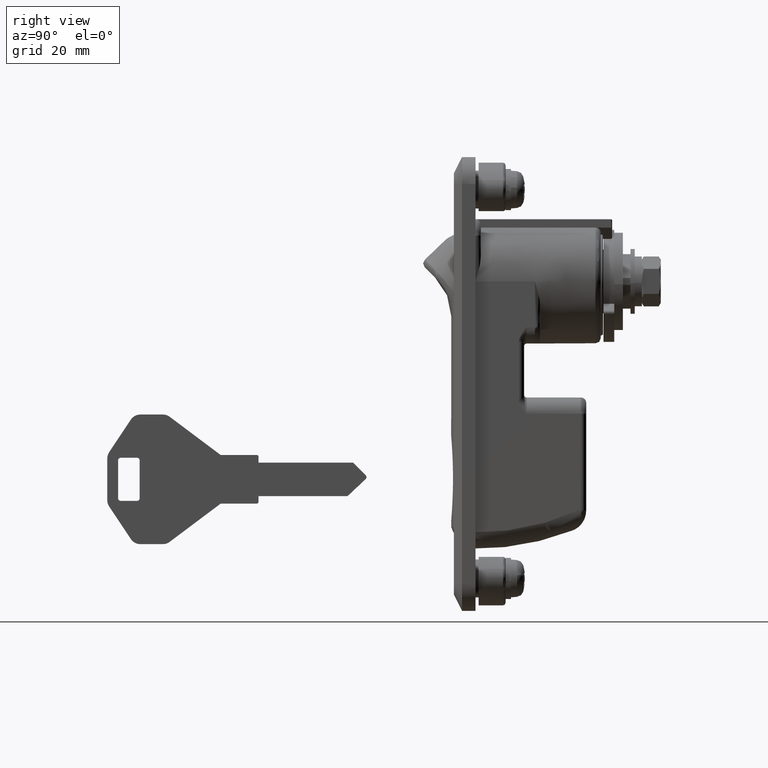
[diagram: clean part render]
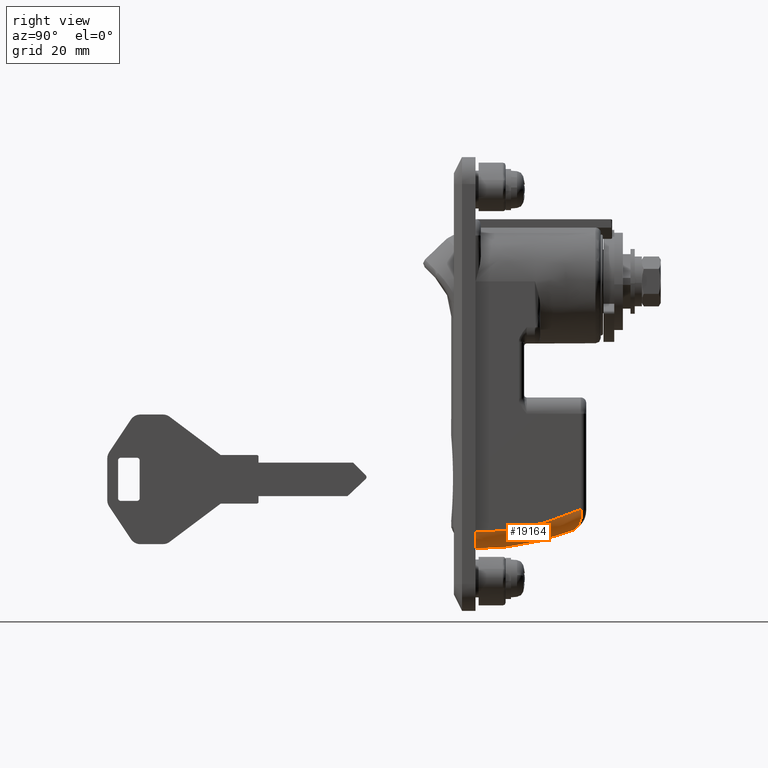
[diagram: same view with one face highlighted and labeled with its STEP entity id]
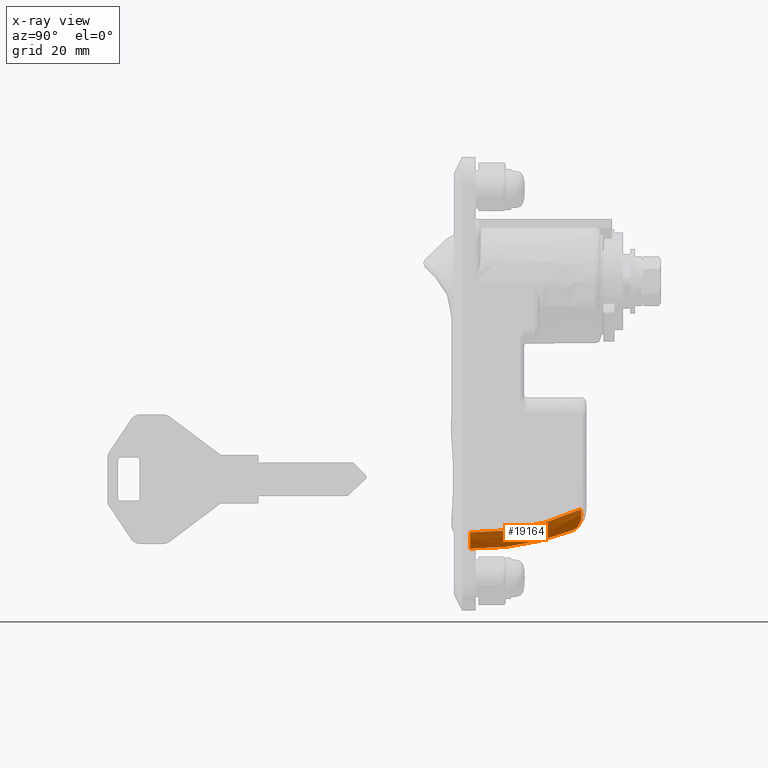
[diagram: x-ray of the same camera — body ghosted, the highlighted face saturated]
A machine part, right view. The second image highlights one B-rep face of the part: STEP entity #19164.
The next image is the same camera in x-ray: the body ghosted, the highlighted face saturated — about 0% of this face is hidden behind the body in this view.
In plain terms, the highlighted face is a freeform B-spline surface patch.
Its self-contained STEP definition (entity closure, byte-faithful):
#18312=CARTESIAN_POINT('',(18.950549450549651,-8.500000000000000,-46.130551421193502));
#18313=VERTEX_POINT('',#18312);
#18409=CARTESIAN_POINT('',(20.535874561105551,-11.488920870784440,-42.480839474703053));
#18410=VERTEX_POINT('',#18409);
#18424=CARTESIAN_POINT('',(20.535874561105551,-11.488920870784440,-42.480839474703053));
#18425=CARTESIAN_POINT('',(20.565725364921011,-11.470380853826841,-42.703898077207413));
#18426=CARTESIAN_POINT('',(20.581696037812559,-11.429469992023980,-42.923545226877181));
#18427=CARTESIAN_POINT('',(20.584121388931191,-11.353719028747699,-43.194498847000077));
#18428=CARTESIAN_POINT('',(20.583717324274922,-11.337290856842060,-43.248589846542203));
#18429=CARTESIAN_POINT('',(20.581157378948539,-11.302357466910630,-43.355323502126332));
#18430=CARTESIAN_POINT('',(20.579005560984029,-11.283820532498270,-43.408094576253532));
#18431=CARTESIAN_POINT('',(20.569998765727568,-11.225165164122251,-43.564704442212211));
#18432=CARTESIAN_POINT('',(20.560597444732149,-11.182010770428400,-43.666844425045042));
#18433=CARTESIAN_POINT('',(20.535209235250822,-11.088242122849010,-43.866910465875343));
#18434=CARTESIAN_POINT('',(20.519221625211340,-11.037625631688501,-43.964835411319797));
#18435=CARTESIAN_POINT('',(20.490341410731979,-10.956395040331520,-44.108699744383557));
#18436=CARTESIAN_POINT('',(20.479897085055551,-10.928432116113539,-44.156149736555861));
#18437=CARTESIAN_POINT('',(20.457366963690991,-10.870763428343309,-44.250052812099689));
#18438=CARTESIAN_POINT('',(20.445296282833500,-10.841103324415430,-44.296421019851763));
#18439=CARTESIAN_POINT('',(20.381529068338310,-10.690112557672240,-44.523506109910599));
#18440=CARTESIAN_POINT('',(20.319244556058901,-10.559689730254640,-44.691931399553233));
#18441=CARTESIAN_POINT('',(20.174010053329859,-10.282569534429721,-45.005686191794268));
#18442=CARTESIAN_POINT('',(20.091043972469748,-10.135842372045250,-45.150983033550247));
#18443=CARTESIAN_POINT('',(19.904501186752501,-9.827120096981780,-45.419368101523837));
#18444=CARTESIAN_POINT('',(19.802932697467359,-9.668452282731801,-45.539551351885223));
#18445=CARTESIAN_POINT('',(19.639037715735590,-9.425172275804288,-45.700272904537393));
#18446=CARTESIAN_POINT('',(19.582458771526031,-9.343170188382366,-45.750586548383467));
#18447=CARTESIAN_POINT('',(19.465402181731740,-9.177408150146471,-45.844777317525022));
#18448=CARTESIAN_POINT('',(19.404799376811471,-9.093481041812069,-45.888729211555102));
#18449=CARTESIAN_POINT('',(19.280394010533531,-8.924931698999975,-45.969672063803543));
#18450=CARTESIAN_POINT('',(19.216582776702410,-8.840288101356963,-46.006692466854112));
#18451=CARTESIAN_POINT('',(19.118456777115998,-8.712821160357937,-46.057081107106370));
#18452=CARTESIAN_POINT('',(19.085380101683850,-8.670292569882612,-46.073001931980649));
#18453=CARTESIAN_POINT('',(19.018487862859089,-8.585160603537206,-46.103098711689292));
#18454=CARTESIAN_POINT('',(18.984584036766432,-8.542447678804736,-46.117307713843580));
#18455=CARTESIAN_POINT('',(18.950549450549651,-8.500000000000000,-46.130551421193502));
#18456=B_SPLINE_CURVE_WITH_KNOTS('',3,(#18424,#18425,#18426,#18427,#18428,#18429,#18430,#18431,#18432,#18433,#18434,#18435,#18436,#18437,#18438,#18439,#18440,#18441,#18442,#18443,#18444,#18445,#18446,#18447,#18448,#18449,#18450,#18451,#18452,#18453,#18454,#18455),.UNSPECIFIED.,.F.,.U.,(4,2,2,2,2,2,2,2,2,2,2,2,2,2,2,4),(0.0,0.124999999999996,0.156249999999994,0.187499999999992,0.249999999999988,0.312499999999984,0.343749999999984,0.374999999999983,0.499999999999986,0.624999999999989,0.749999999999992,0.812499999999994,0.874999999999996,0.937499999999997,0.968749999999999,1.0),.UNSPECIFIED.);
#18457=EDGE_CURVE('',#18410,#18313,#18456,.T.);
#18483=CARTESIAN_POINT('',(20.500000000000000,-11.500000000000000,-42.213741838410847));
#18484=VERTEX_POINT('',#18483);
#18500=CARTESIAN_POINT('',(20.500000000000000,-11.500000000000000,-42.213741838410847));
#18501=CARTESIAN_POINT('',(20.512021266390619,-11.500000000000000,-42.302919097803631));
#18502=CARTESIAN_POINT('',(20.523979168808861,-11.496308972500611,-42.391951765067319));
#18503=CARTESIAN_POINT('',(20.535874561105551,-11.488920870784440,-42.480839474703053));
#18504=QUASI_UNIFORM_CURVE('',3,(#18500,#18501,#18502,#18503),.UNSPECIFIED.,.F.,.U.);
#18505=EDGE_CURVE('',#18484,#18410,#18504,.T.);
#19079=CARTESIAN_POINT('',(-1.175368157488439,-8.291388679378102,-49.444907702535083));
#19080=CARTESIAN_POINT('',(11.428178483475097,-8.291388679378100,-49.999410791086099));
#19081=CARTESIAN_POINT('',(22.759272329282826,-8.291388679378100,-44.452954817795217));
#19082=CARTESIAN_POINT('',(-1.185911378606293,-11.732612088108512,-49.684549251605873));
#19083=CARTESIAN_POINT('',(11.478720085469805,-11.732612088108514,-50.241739815678201));
#19084=CARTESIAN_POINT('',(22.864731636821897,-11.732612088108512,-44.668402180290030));
#19085=CARTESIAN_POINT('',(-1.034658325875136,-11.492738056579460,-46.246651530121952));
#19086=CARTESIAN_POINT('',(10.753650250912751,-11.492738056579459,-46.765287569709109));
#19087=CARTESIAN_POINT('',(21.351812385115959,-11.492738056579457,-41.577594265332785));
#19095=(BOUNDED_SURFACE()B_SPLINE_SURFACE(2,2,((#19079,#19082,#19085),(#19080,#19083,#19086),(#19081,#19084,#19087)),.UNSPECIFIED.,.F.,.F.,.U.)B_SPLINE_SURFACE_WITH_KNOTS((3,3),(3,3),(0.0,24.834424488644771),(0.0,5.467122419565879),.UNSPECIFIED.)GEOMETRIC_REPRESENTATION_ITEM()RATIONAL_B_SPLINE_SURFACE(((0.872173934714462,0.572342279542682,0.872174011602236),(0.844966407871365,0.554488022135649,0.844966482360619),(0.871796176333700,0.572094385075586,0.871796253188172)))REPRESENTATION_ITEM('')SURFACE());
#19096=CARTESIAN_POINT('',(-7.327472E-015,-8.500000000000000,-49.489897959078512));
#19097=VERTEX_POINT('',#19096);
#19098=CARTESIAN_POINT('',(18.950549450549651,-8.500000000000000,-46.130551421193509));
#19099=CARTESIAN_POINT('',(9.808160959863344,-8.500000000000000,-49.688083070875940));
#19100=CARTESIAN_POINT('',(1.496199E-014,-8.500000000000000,-49.489897959078483));
#19108=(BOUNDED_CURVE()B_SPLINE_CURVE(2,(#19098,#19099,#19100),.UNSPECIFIED.,.F.,.U.)CURVE()GEOMETRIC_REPRESENTATION_ITEM()QUASI_UNIFORM_CURVE()RATIONAL_B_SPLINE_CURVE((1.0,0.980921539815921,1.0))REPRESENTATION_ITEM(''));
#19109=EDGE_CURVE('',#18313,#19097,#19108,.T.);
#19110=ORIENTED_EDGE('',*,*,#19109,.F.);
#19111=ORIENTED_EDGE('',*,*,#18457,.F.);
#19112=ORIENTED_EDGE('',*,*,#18505,.F.);
#19113=CARTESIAN_POINT('',(0.0,-11.500000000000000,-46.489246068311303));
#19114=VERTEX_POINT('',#19113);
#19115=CARTESIAN_POINT('',(-7.155734E-015,-11.500000000000000,-46.489246068311317));
#19116=CARTESIAN_POINT('',(10.744052335672883,-11.499999999999996,-46.720354405062743));
#19117=CARTESIAN_POINT('',(20.500000000000021,-11.500000000000000,-42.213741838410947));
#19125=(BOUNDED_CURVE()B_SPLINE_CURVE(2,(#19115,#19116,#19117),.UNSPECIFIED.,.F.,.U.)CURVE()GEOMETRIC_REPRESENTATION_ITEM()QUASI_UNIFORM_CURVE()RATIONAL_B_SPLINE_CURVE((1.0,0.974318754776570,1.0))REPRESENTATION_ITEM(''));
#19126=EDGE_CURVE('',#19114,#18484,#19125,.T.);
#19127=ORIENTED_EDGE('',*,*,#19126,.F.);
#19128=CARTESIAN_POINT('',(-7.327472E-015,-8.500000000000000,-49.489897959078512));
#19129=CARTESIAN_POINT('',(-7.327472E-015,-8.698103322389844,-49.489897959078512));
#19130=CARTESIAN_POINT('',(7.204405E-031,-8.892896891382499,-49.470464223345637));
#19131=CARTESIAN_POINT('',(0.0,-9.180325795504636,-49.413356023636879));
#19132=CARTESIAN_POINT('',(0.0,-9.275335958924444,-49.389625736119669));
#19133=CARTESIAN_POINT('',(0.0,-9.463720951000243,-49.332563036751182));
#19134=CARTESIAN_POINT('',(0.0,-9.557353599196350,-49.299068871915452));
#19135=CARTESIAN_POINT('',(0.0,-9.829725442996553,-49.186214701680832));
#19136=CARTESIAN_POINT('',(0.0,-10.001972119500820,-49.094134890425622));
#19137=CARTESIAN_POINT('',(0.0,-10.205718896117460,-48.958172897548728));
#19138=CARTESIAN_POINT('',(0.0,-10.245884972545699,-48.929928003611032));
#19139=CARTESIAN_POINT('',(0.0,-10.325031998851429,-48.871299718682252));
#19140=CARTESIAN_POINT('',(0.0,-10.364112700447260,-48.840832943835331));
#19141=CARTESIAN_POINT('',(0.0,-10.478758899893210,-48.746795946410337));
#19142=CARTESIAN_POINT('',(0.0,-10.551504898647870,-48.680824071836170));
#19143=CARTESIAN_POINT('',(0.0,-10.759034846699000,-48.473375175262419));
#19144=CARTESIAN_POINT('',(0.0,-10.883211940670121,-48.322454971470933));
#19145=CARTESIAN_POINT('',(0.0,-11.020295832165610,-48.117657095446759));
#19146=CARTESIAN_POINT('',(0.0,-11.046865896547050,-48.075763451785491));
#19147=CARTESIAN_POINT('',(0.0,-11.097680526473390,-47.991079613937927));
#19148=CARTESIAN_POINT('',(0.0,-11.121948433691630,-47.948269167763222));
#19149=CARTESIAN_POINT('',(0.0,-11.191397228103391,-47.818458274952953));
#19150=CARTESIAN_POINT('',(0.0,-11.275065019801090,-47.641704799631057));
#19151=CARTESIAN_POINT('',(0.0,-11.341144418183710,-47.457718933968863));
#19152=CARTESIAN_POINT('',(0.0,-11.384019816906489,-47.316980995870992));
#19153=CARTESIAN_POINT('',(0.0,-11.397195620824309,-47.269609449695473));
#19154=CARTESIAN_POINT('',(0.0,-11.421275574369620,-47.173932247545352));
#19155=CARTESIAN_POINT('',(0.0,-11.432193215952481,-47.125538149331582));
#19156=CARTESIAN_POINT('',(0.0,-11.480577007297621,-46.883290541038100));
#19157=CARTESIAN_POINT('',(0.0,-11.500000000000000,-46.687348171504652));
#19158=CARTESIAN_POINT('',(0.0,-11.500000000000000,-46.489246068311303));
#19159=B_SPLINE_CURVE_WITH_KNOTS('',3,(#19128,#19129,#19130,#19131,#19132,#19133,#19134,#19135,#19136,#19137,#19138,#19139,#19140,#19141,#19142,#19143,#19144,#19145,#19146,#19147,#19148,#19149,#19150,#19151,#19152,#19153,#19154,#19155,#19156,#19157,#19158),.UNSPECIFIED.,.F.,.U.,(4,2,2,2,2,2,2,2,2,2,2,1,2,2,2,4),(0.0,0.124999999999998,0.187499999999997,0.249999999999996,0.374999999999994,0.406249999999993,0.437499999999993,0.499999999999994,0.624999999999997,0.656249999999996,0.687499999999996,0.749999999999994,0.812499999999993,0.843749999999994,0.874999999999995,1.0),.UNSPECIFIED.);
#19160=EDGE_CURVE('',#19097,#19114,#19159,.T.);
#19161=ORIENTED_EDGE('',*,*,#19160,.F.);
#19162=EDGE_LOOP('',(#19110,#19111,#19112,#19127,#19161));
#19163=FACE_OUTER_BOUND('',#19162,.T.);
#19164=ADVANCED_FACE('',(#19163),#19095,.T.);